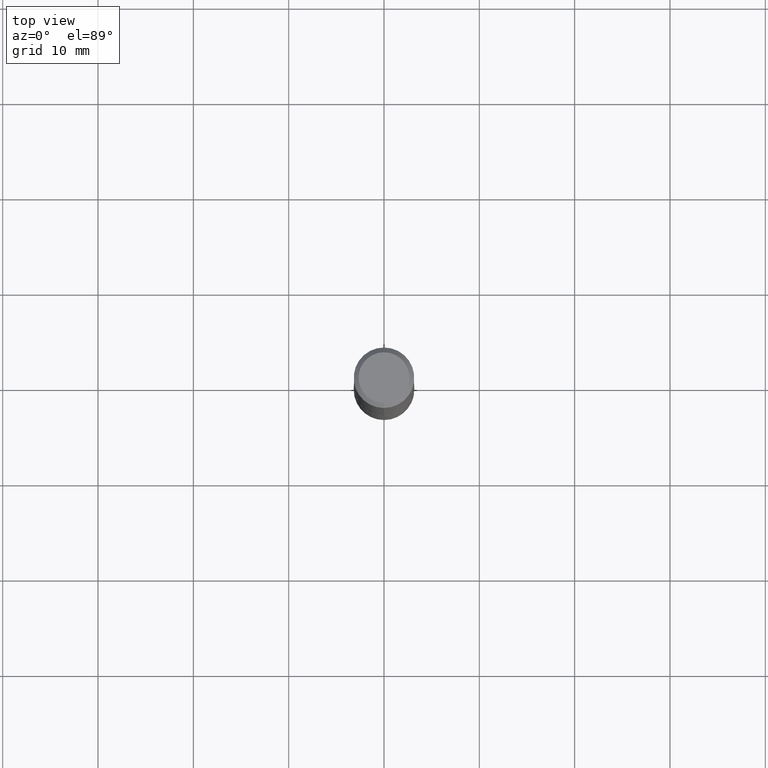
[diagram: clean part render]
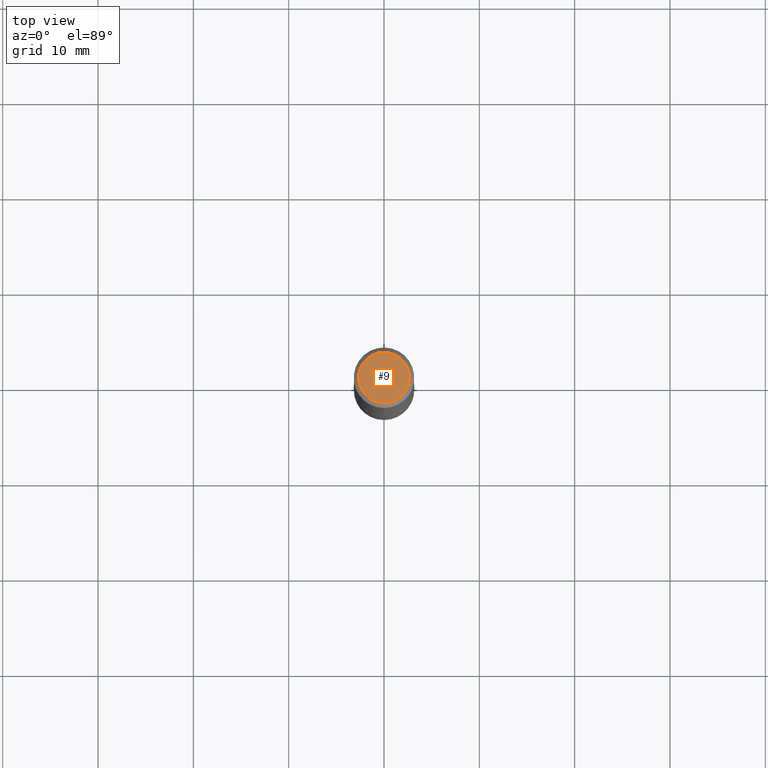
[diagram: same view with one face highlighted and labeled with its STEP entity id]
A machine part, top view. The second image highlights one B-rep face of the part: STEP entity #9.
In plain terms, the highlighted planar face has unit normal (0, -0, -1).
Its self-contained STEP definition (entity closure, byte-faithful):
#1 = EDGE_LOOP ( 'NONE', ( #340, #269 ) ) ;
#8 = FACE_OUTER_BOUND ( 'NONE', #1, .T. ) ;
#9 = ADVANCED_FACE ( 'NONE', ( #8 ), #29, .F. ) ;
#10 = DIRECTION ( 'NONE',  ( -6.982962677686265133E-15, -1.000000000000000000, 3.490963975200467606E-15 ) ) ;
#25 = CIRCLE ( 'NONE', #316, 0.1050000000000001210 ) ;
#29 = PLANE ( 'NONE',  #87 ) ;
#40 = DIRECTION ( 'NONE',  ( -2.445830079285897691E-29, 3.490963975200467606E-15, 1.000000000000000000 ) ) ;
#82 = CARTESIAN_POINT ( 'NONE',  ( 1.984939338735225385E-45, -2.833128835551018326E-31, -8.115606049438900564E-17 ) ) ;
#87 = AXIS2_PLACEMENT_3D ( 'NONE', #268, #381, #294 ) ;
#93 = EDGE_CURVE ( 'NONE', #192, #297, #291, .T. ) ;
#104 = CARTESIAN_POINT ( 'NONE',  ( 8.030407079339213225E-16, 0.1050000000000001210, -4.477072778904384504E-16 ) ) ;
#156 = DIRECTION ( 'NONE',  ( -6.982962677686265133E-15, -1.000000000000000000, 3.490963975200467606E-15 ) ) ;
#192 = VERTEX_POINT ( 'NONE', #104 ) ;
#205 = AXIS2_PLACEMENT_3D ( 'NONE', #280, #334, #10 ) ;
#227 = EDGE_CURVE ( 'NONE', #297, #192, #25, .T. ) ;
#268 = CARTESIAN_POINT ( 'NONE',  ( 7.332110811570587146E-16, 0.1050000000000001210, -4.071292476432439846E-16 ) ) ;
#269 = ORIENTED_EDGE ( 'NONE', *, *, #227, .T. ) ;
#280 = CARTESIAN_POINT ( 'NONE',  ( 1.984939338735225385E-45, -2.833128835551018326E-31, -8.115606049438900564E-17 ) ) ;
#289 = CARTESIAN_POINT ( 'NONE',  ( -7.889572697437263111E-16, -0.1050000000000001210, 2.853951569016605377E-16 ) ) ;
#291 = CIRCLE ( 'NONE', #205, 0.1050000000000001210 ) ;
#294 = DIRECTION ( 'NONE',  ( 6.982962677686265922E-15, 1.000000000000000000, -3.490963975200467212E-15 ) ) ;
#297 = VERTEX_POINT ( 'NONE', #289 ) ;
#316 = AXIS2_PLACEMENT_3D ( 'NONE', #82, #40, #156 ) ;
#334 = DIRECTION ( 'NONE',  ( -2.445830079285897691E-29, 3.490963975200467606E-15, 1.000000000000000000 ) ) ;
#340 = ORIENTED_EDGE ( 'NONE', *, *, #93, .T. ) ;
#381 = DIRECTION ( 'NONE',  ( 2.445830079285897691E-29, -3.490963975200467212E-15, -1.000000000000000000 ) ) ;